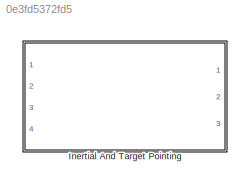
MODEL slx_0e3fd5372fd5
KIND library
CONFIG AbsTol = auto
CONFIG FixedStep = auto
CONFIG MaxStep = auto
CONFIG MinStep = auto
CONFIG RelTol = 1e-3
CONFIG SampleTimeConstraint = Unconstrained
CONFIG Solver = VariableStepAuto
CONFIG SolverMode = Auto
CONFIG SolverName = VariableStepAuto
CONFIG StartTime = 0.0
CONFIG StopTime = 10.0
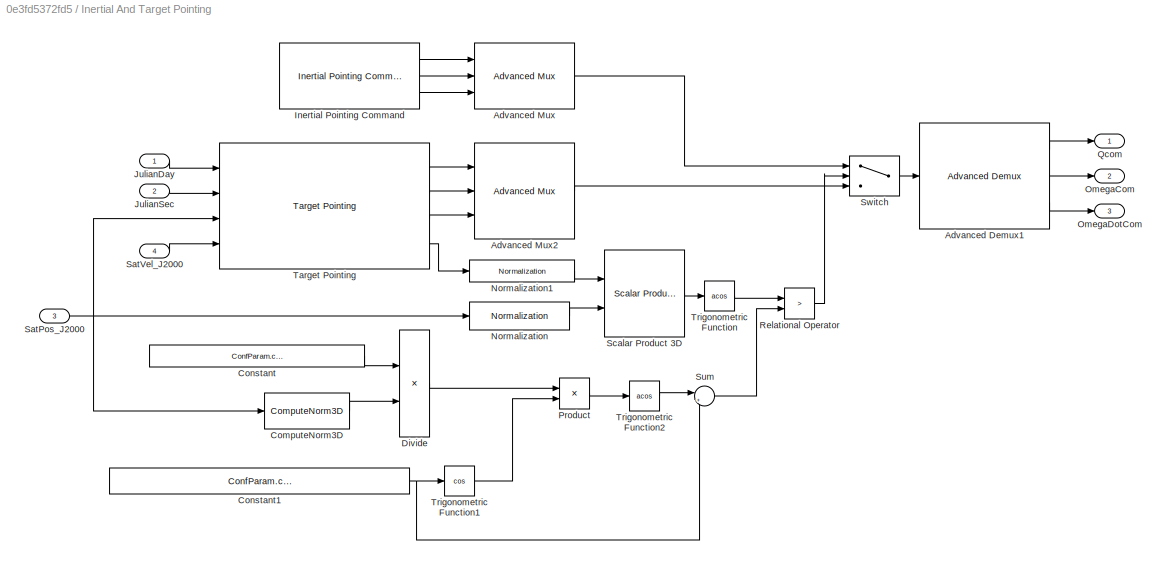
BLOCK [SubSystem] Inertial And Target Pointing 
  Ports = [4, 3]
  RequestExecContextInheritance = off
BLOCK [Reference] Inertial And Target Pointing /Advanced Demux1  REF=AdvancedDemux/Advanced Demux
  Ports = [1, 3]
  SourceBlock = AdvancedDemux/Advanced Demux
  SourceType = SubSystem
BLOCK [Reference] Inertial And Target Pointing /Advanced Mux  REF=AdvancedMux/Advanced Mux
  Ports = [3, 1]
  SourceBlock = AdvancedMux/Advanced Mux
  SourceType = SubSystem
BLOCK [Reference] Inertial And Target Pointing /Advanced Mux2  REF=AdvancedMux/Advanced Mux
  Ports = [3, 1]
  SourceBlock = AdvancedMux/Advanced Mux
  SourceType = SubSystem
BLOCK [Reference] Inertial And Target Pointing /ComputeNorm3D  REF=ComputeNorm3D/ComputeNorm3D
  Ports = [1, 1]
  SourceBlock = ComputeNorm3D/ComputeNorm3D
  SourceType = SubSystem
BLOCK [Constant] Inertial And Target Pointing /Constant
  Value = ConfParam.confInertialAndTargetPointing.d
BLOCK [Constant] Inertial And Target Pointing /Constant1
  Value = ConfParam.confInertialAndTargetPointing.VisionAngle*pi/180
BLOCK [Product] Inertial And Target Pointing /Divide
  InputSameDT = off
  Inputs = */
  OutDataTypeStr = Inherit: Inherit via internal rule
  Ports = [2, 1]
  RndMeth = Floor
  SaturateOnIntegerOverflow = off
BLOCK [Reference] Inertial And Target Pointing /Inertial Pointing Command  REF=InertialPointing/Inertial Pointing Command
  Ports = [0, 3]
  SourceBlock = InertialPointing/Inertial Pointing Command
  SourceType = SubSystem
BLOCK [Inport] Inertial And Target Pointing /JulianDay
  IconDisplay = Port number
BLOCK [Inport] Inertial And Target Pointing /JulianSec
  IconDisplay = Port number
  Port = 2
BLOCK [Reference] Inertial And Target Pointing /Normalization  REF=Normalization/Normalization
  Ports = [1, 1]
  SourceBlock = Normalization/Normalization
  SourceType = SubSystem
BLOCK [Reference] Inertial And Target Pointing /Normalization1  REF=Normalization/Normalization
  Ports = [1, 1]
  SourceBlock = Normalization/Normalization
  SourceType = SubSystem
BLOCK [Outport] Inertial And Target Pointing /OmegaCom
  IconDisplay = Port number
  Port = 2
BLOCK [Outport] Inertial And Target Pointing /OmegaDotCom
  IconDisplay = Port number
  Port = 3
BLOCK [Product] Inertial And Target Pointing /Product
  InputSameDT = off
  OutDataTypeStr = Inherit: Inherit via internal rule
  Ports = [2, 1]
  RndMeth = Floor
  SaturateOnIntegerOverflow = off
BLOCK [Outport] Inertial And Target Pointing /Qcom
  IconDisplay = Port number
BLOCK [RelationalOperator] Inertial And Target Pointing /Relational Operator
  InputSameDT = off
  Operator = >
  OutDataTypeStr = boolean
  Ports = [2, 1]
BLOCK [Inport] Inertial And Target Pointing /SatPos_J2000
  IconDisplay = Port number
  Port = 3
BLOCK [Inport] Inertial And Target Pointing /SatVel_J2000
  IconDisplay = Port number
  Port = 4
BLOCK [Reference] Inertial And Target Pointing /Scalar Product 3D  REF=ScalarProduct3D/Scalar Product 3D
  Ports = [2, 1]
  SourceBlock = ScalarProduct3D/Scalar Product 3D
  SourceType = SubSystem
BLOCK [Sum] Inertial And Target Pointing /Sum
  IconShape = round
  InputSameDT = off
  Inputs = |+-
  OutDataTypeStr = Inherit: Inherit via internal rule
  Ports = [2, 1]
  SaturateOnIntegerOverflow = off
BLOCK [Switch] Inertial And Target Pointing /Switch
  Criteria = u2 > Threshold
  InputSameDT = off
  SaturateOnIntegerOverflow = off
BLOCK [Reference] Inertial And Target Pointing /Target Pointing  REF=TargetPointing/Target Pointing
  Ports = [4, 4]
  SourceBlock = TargetPointing/Target Pointing
  SourceType = SubSystem
BLOCK [Trigonometry] Inertial And Target Pointing /Trigonometric Function
  Operator = acos
  Ports = [1, 1]
BLOCK [Trigonometry] Inertial And Target Pointing /Trigonometric Function1
  Operator = cos
  Ports = [1, 1]
BLOCK [Trigonometry] Inertial And Target Pointing /Trigonometric Function2
  Operator = acos
  Ports = [1, 1]
LINE Inertial And Target Pointing /Advanced Demux1:1 -> Inertial And Target Pointing /Qcom:1
LINE Inertial And Target Pointing /Advanced Demux1:2 -> Inertial And Target Pointing /OmegaCom:1
LINE Inertial And Target Pointing /Advanced Demux1:3 -> Inertial And Target Pointing /OmegaDotCom:1
LINE Inertial And Target Pointing /Advanced Mux2:1 -> Inertial And Target Pointing /Switch:3
LINE Inertial And Target Pointing /Advanced Mux:1 -> Inertial And Target Pointing /Switch:1
LINE Inertial And Target Pointing /ComputeNorm3D:1 -> Inertial And Target Pointing /Divide:2
NET Inertial And Target Pointing /Constant1:1 -> Inertial And Target Pointing /Sum:2, Inertial And Target Pointing /Trigonometric Function1:1
LINE Inertial And Target Pointing /Constant:1 -> Inertial And Target Pointing /Divide:1
LINE Inertial And Target Pointing /Divide:1 -> Inertial And Target Pointing /Product:1
LINE Inertial And Target Pointing /Inertial Pointing Command:1 -> Inertial And Target Pointing /Advanced Mux:1
LINE Inertial And Target Pointing /Inertial Pointing Command:2 -> Inertial And Target Pointing /Advanced Mux:2
LINE Inertial And Target Pointing /Inertial Pointing Command:3 -> Inertial And Target Pointing /Advanced Mux:3
LINE Inertial And Target Pointing /JulianDay:1 -> Inertial And Target Pointing /Target Pointing:1
LINE Inertial And Target Pointing /JulianSec:1 -> Inertial And Target Pointing /Target Pointing:2
LINE Inertial And Target Pointing /Normalization1:1 -> Inertial And Target Pointing /Scalar Product 3D:1
LINE Inertial And Target Pointing /Normalization:1 -> Inertial And Target Pointing /Scalar Product 3D:2
LINE Inertial And Target Pointing /Product:1 -> Inertial And Target Pointing /Trigonometric Function2:1
LINE Inertial And Target Pointing /Relational Operator:1 -> Inertial And Target Pointing /Switch:2
NET Inertial And Target Pointing /SatPos_J2000:1 -> Inertial And Target Pointing /ComputeNorm3D:1, Inertial And Target Pointing /Normalization:1, Inertial And Target Pointing /Target Pointing:3
LINE Inertial And Target Pointing /SatVel_J2000:1 -> Inertial And Target Pointing /Target Pointing:4
LINE Inertial And Target Pointing /Scalar Product 3D:1 -> Inertial And Target Pointing /Trigonometric Function:1
LINE Inertial And Target Pointing /Sum:1 -> Inertial And Target Pointing /Relational Operator:2
LINE Inertial And Target Pointing /Switch:1 -> Inertial And Target Pointing /Advanced Demux1:1
LINE Inertial And Target Pointing /Target Pointing:1 -> Inertial And Target Pointing /Advanced Mux2:1
LINE Inertial And Target Pointing /Target Pointing:2 -> Inertial And Target Pointing /Advanced Mux2:2
LINE Inertial And Target Pointing /Target Pointing:3 -> Inertial And Target Pointing /Advanced Mux2:3
LINE Inertial And Target Pointing /Target Pointing:4 -> Inertial And Target Pointing /Normalization1:1
LINE Inertial And Target Pointing /Trigonometric Function1:1 -> Inertial And Target Pointing /Product:2
LINE Inertial And Target Pointing /Trigonometric Function2:1 -> Inertial And Target Pointing /Sum:1
LINE Inertial And Target Pointing /Trigonometric Function:1 -> Inertial And Target Pointing /Relational Operator:1
note: NET lines group one-source signal fan-out (src -> all destinations, sorted); 1:1 wires keep LINE
